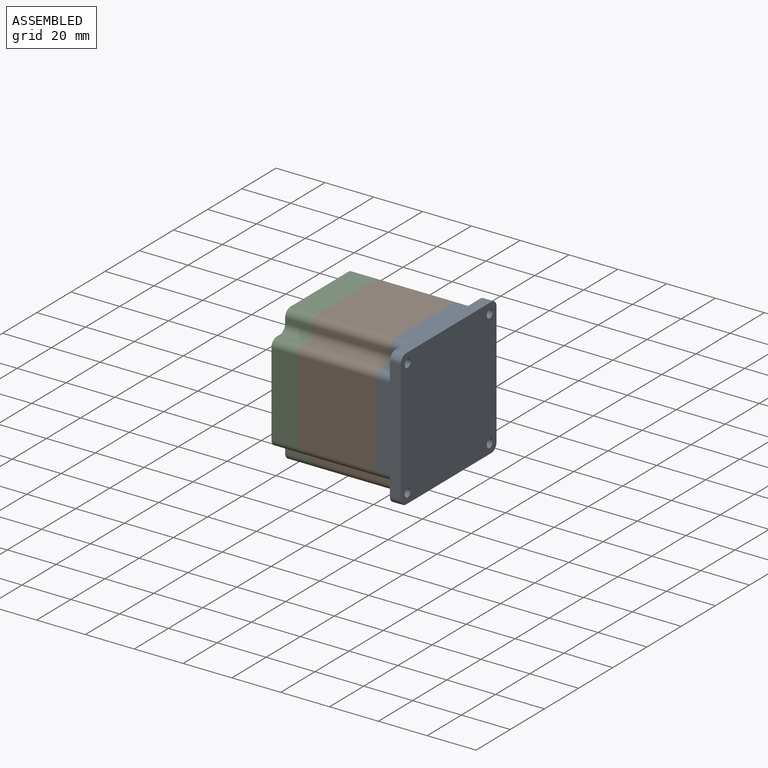
[diagram: assembled view]
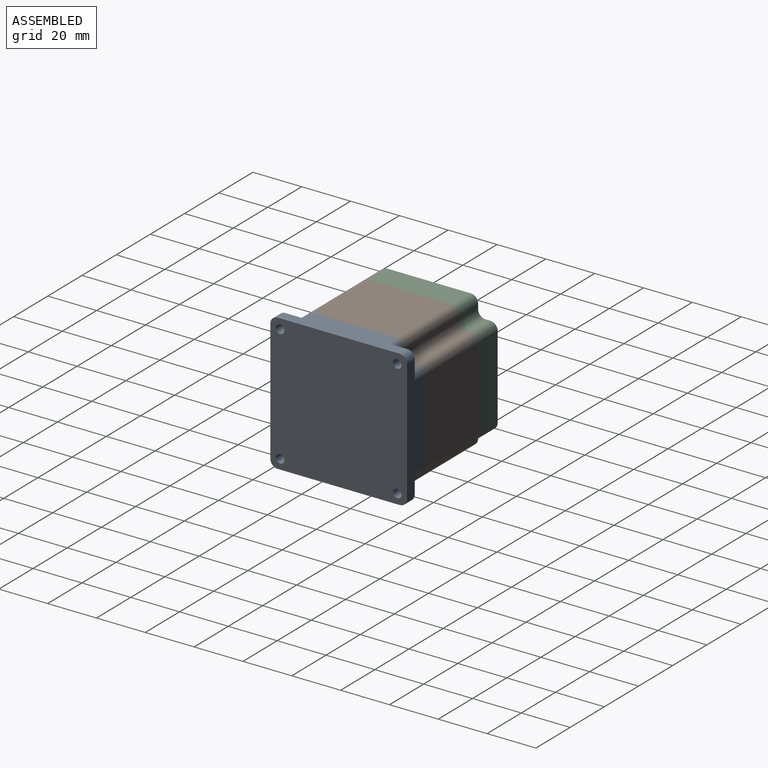
[diagram: assembled view, second angle]
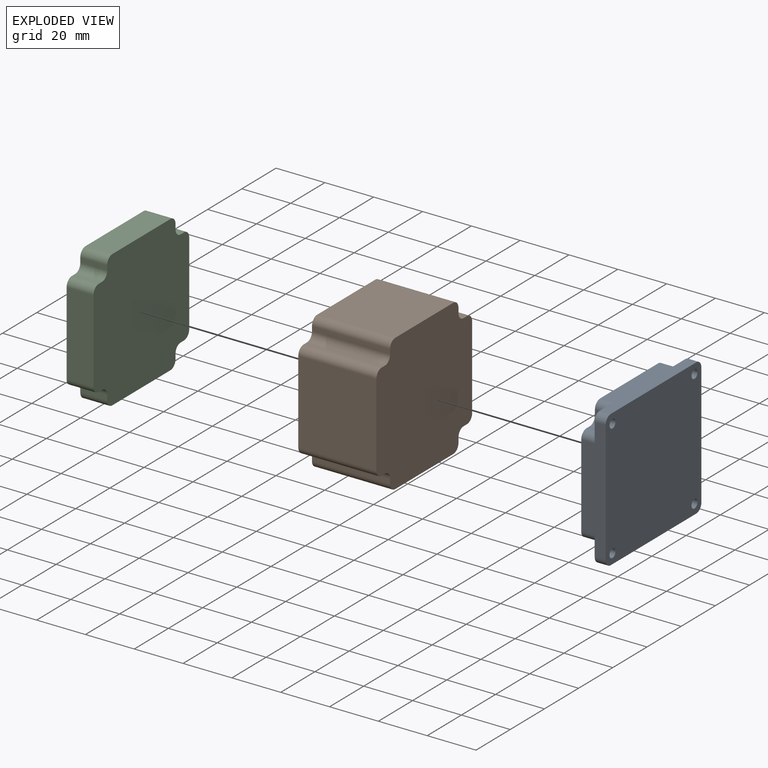
[diagram: exploded view]
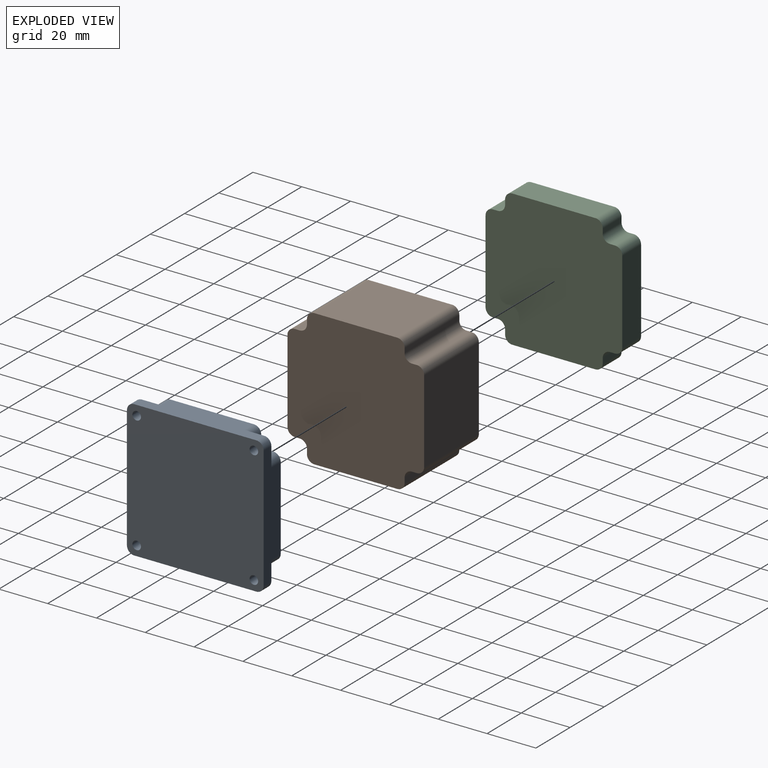
[diagram: exploded view, second angle]
ASSEMBLY  parts=3 mates=2
PART A: 38 faces, bbox 10x56x56 mm
  f0: plane 5.5x2mm, normal (0,0,1), area 11mm2, adj f12,f17,f23,f25
  f1: plane 50x10mm, normal (0,-1,0), area 412mm2, adj f12,f13,f16,f17,f22,f23,f26,f27
  f2: plane 5.5x2mm, normal (0,0,-1), area 11mm2, adj f12,f13,f27,f28
  f3: plane 5.5x2mm, normal (0,-1,0), area 11mm2, adj f12,f13,f28,f29
  f4: plane 50x10mm, normal (0,0,-1), area 412mm2, adj f12,f13,f14,f16,f26,f29,f30,f31
  f5: plane 5.5x2mm, normal (0,1,0), area 11mm2, adj f12,f14,f31,f32
  f6: plane 5.5x2mm, normal (0,0,-1), area 11mm2, adj f12,f14,f32,f33
  f7: plane 50x10mm, normal (0,1,0), area 412mm2, adj f12,f14,f15,f16,f30,f33,f34,f35
  f8: plane 5.5x2mm, normal (0,0,1), area 11mm2, adj f12,f15,f35,f36
  f9: plane 5.5x2mm, normal (0,1,0), area 11mm2, adj f12,f15,f36,f37
  f10: plane 50x10mm, normal (0,0,1), area 412mm2, adj f12,f15,f16,f17,f22,f24,f34,f37
  f11: plane 5.5x2mm, normal (0,-1,0), area 11mm2, adj f12,f17,f24,f25
  f12: plane 56x56mm, normal (-1,0,0), area 2872.3mm2, adj f0,f1,f2,f3,f4,f5,f6,f7
  f13: plane 11x11mm, normal (-1,0,0), area 54.4mm2, adj f1,f2,f3,f4,f21,f26,f27,f28
  f14: plane 11x11mm, normal (-1,0,0), area 54.4mm2, adj f4,f5,f6,f7,f20,f30,f31,f32
  f15: plane 11x11mm, normal (-1,0,0), area 54.4mm2, adj f7,f8,f9,f10,f19,f34,f35,f36
  f16: plane 56x56mm, normal (1,0,0), area 3089.8mm2, adj f1,f4,f7,f10,f18,f19,f20,f21
  f17: plane 11x11mm, normal (-1,0,0), area 54.4mm2, adj f0,f1,f10,f11,f18,f22,f23,f24
  f18: cylinder r=1.75mm len=4.5mm, axis (1,0,0), area 49.5mm2, adj f16,f17
  f19: cylinder r=1.75mm len=4.5mm, axis (1,0,0), area 49.5mm2, adj f15,f16
  f20: cylinder r=1.75mm len=4.5mm, axis (1,0,0), area 49.5mm2, adj f14,f16
  f21: cylinder r=1.75mm len=4.5mm, axis (1,0,0), area 49.5mm2, adj f13,f16
  f22: cylinder r=3mm len=4.5mm, axis (1,0,0), area 21.2mm2, adj f1,f10,f16,f17
  f23: cylinder r=3mm len=5.5mm, axis (1,0,0), area 25.9mm2, adj f0,f1,f12,f17
  f24: cylinder r=3mm len=5.5mm, axis (-1,0,0), area 25.9mm2, adj f10,f11,f12,f17
  f25: cylinder r=3mm len=5.5mm, axis (1,0,0), area 25.9mm2, adj f0,f11,f12,f17
  f26: cylinder r=3mm len=4.5mm, axis (-1,0,0), area 21.2mm2, adj f1,f4,f13,f16
  f27: cylinder r=3mm len=5.5mm, axis (1,0,0), area 25.9mm2, adj f1,f2,f12,f13
  f28: cylinder r=3mm len=5.5mm, axis (1,0,0), area 25.9mm2, adj f2,f3,f12,f13
  f29: cylinder r=3mm len=5.5mm, axis (1,0,0), area 25.9mm2, adj f3,f4,f12,f13
  f30: cylinder r=3mm len=4.5mm, axis (1,0,0), area 21.2mm2, adj f4,f7,f14,f16
  f31: cylinder r=3mm len=5.5mm, axis (1,0,0), area 25.9mm2, adj f4,f5,f12,f14
  f32: cylinder r=3mm len=5.5mm, axis (1,0,0), area 25.9mm2, adj f5,f6,f12,f14
  f33: cylinder r=3mm len=5.5mm, axis (-1,0,0), area 25.9mm2, adj f6,f7,f12,f14
  f34: cylinder r=3mm len=4.5mm, axis (-1,0,0), area 21.2mm2, adj f7,f10,f15,f16
  f35: cylinder r=3mm len=5.5mm, axis (-1,0,0), area 25.9mm2, adj f7,f8,f12,f15
  f36: cylinder r=3mm len=5.5mm, axis (1,0,0), area 25.9mm2, adj f8,f9,f12,f15
  f37: cylinder r=3mm len=5.5mm, axis (-1,0,0), area 25.9mm2, adj f9,f10,f12,f15
PART B: 26 faces, bbox 32x56x56 mm
  f0: plane 32x2mm, normal (0,0,1), area 64mm2, adj f12,f13,f14,f16
  f1: plane 34x32mm, normal (0,-1,0), area 1088mm2, adj f12,f13,f14,f17
  f2: plane 32x2mm, normal (0,0,-1), area 64mm2, adj f12,f13,f17,f18
  f3: plane 32x2mm, normal (0,-1,0), area 64mm2, adj f12,f13,f18,f19
  f4: plane 34x32mm, normal (0,0,-1), area 1088mm2, adj f12,f13,f19,f20
  f5: plane 32x2mm, normal (0,1,0), area 64mm2, adj f12,f13,f20,f21
  f6: plane 32x2mm, normal (0,0,-1), area 64mm2, adj f12,f13,f21,f22
  f7: plane 34x32mm, normal (0,1,0), area 1088mm2, adj f12,f13,f22,f23
  f8: plane 32x2mm, normal (0,0,1), area 64mm2, adj f12,f13,f23,f24
  f9: plane 32x2mm, normal (0,1,0), area 64mm2, adj f12,f13,f24,f25
  f10: plane 34x32mm, normal (0,0,1), area 1088mm2, adj f12,f13,f15,f25
  f11: plane 32x2mm, normal (0,-1,0), area 64mm2, adj f12,f13,f15,f16
  f12: plane 56x56mm, normal (1,0,0), area 2872.3mm2, adj f0,f1,f2,f3,f4,f5,f6,f7
  f13: plane 56x56mm, normal (-1,0,0), area 2872.3mm2, adj f0,f1,f2,f3,f4,f5,f6,f7
  f14: cylinder r=3mm len=32mm, axis (1,0,0), area 150.8mm2, adj f0,f1,f12,f13
  f15: cylinder r=3mm len=32mm, axis (-1,0,0), area 150.8mm2, adj f10,f11,f12,f13
  f16: cylinder r=3mm len=32mm, axis (1,0,0), area 150.8mm2, adj f0,f11,f12,f13
  f17: cylinder r=3mm len=32mm, axis (1,0,0), area 150.8mm2, adj f1,f2,f12,f13
  f18: cylinder r=3mm len=32mm, axis (1,0,0), area 150.8mm2, adj f2,f3,f12,f13
  f19: cylinder r=3mm len=32mm, axis (1,0,0), area 150.8mm2, adj f3,f4,f12,f13
  f20: cylinder r=3mm len=32mm, axis (1,0,0), area 150.8mm2, adj f4,f5,f12,f13
  f21: cylinder r=3mm len=32mm, axis (1,0,0), area 150.8mm2, adj f5,f6,f12,f13
  f22: cylinder r=3mm len=32mm, axis (-1,0,0), area 150.8mm2, adj f6,f7,f12,f13
  f23: cylinder r=3mm len=32mm, axis (-1,0,0), area 150.8mm2, adj f7,f8,f12,f13
  f24: cylinder r=3mm len=32mm, axis (1,0,0), area 150.8mm2, adj f8,f9,f12,f13
  f25: cylinder r=3mm len=32mm, axis (-1,0,0), area 150.8mm2, adj f9,f10,f12,f13
PART C: 26 faces, bbox 11x56x56 mm
  f0: plane 11x2mm, normal (0,0,1), area 22mm2, adj f12,f13,f14,f16
  f1: plane 34x11mm, normal (0,-1,0), area 374mm2, adj f12,f13,f14,f17
  f2: plane 11x2mm, normal (0,0,-1), area 22mm2, adj f12,f13,f17,f18
  f3: plane 11x2mm, normal (0,-1,0), area 22mm2, adj f12,f13,f18,f19
  f4: plane 34x11mm, normal (0,0,-1), area 374mm2, adj f12,f13,f19,f20
  f5: plane 11x2mm, normal (0,1,0), area 22mm2, adj f12,f13,f20,f21
  f6: plane 11x2mm, normal (0,0,-1), area 22mm2, adj f12,f13,f21,f22
  f7: plane 34x11mm, normal (0,1,0), area 374mm2, adj f12,f13,f22,f23
  f8: plane 11x2mm, normal (0,0,1), area 22mm2, adj f12,f13,f23,f24
  f9: plane 11x2mm, normal (0,1,0), area 22mm2, adj f12,f13,f24,f25
  f10: plane 34x11mm, normal (0,0,1), area 374mm2, adj f12,f13,f15,f25
  f11: plane 11x2mm, normal (0,-1,0), area 22mm2, adj f12,f13,f15,f16
  f12: plane 56x56mm, normal (1,0,0), area 2872.3mm2, adj f0,f1,f2,f3,f4,f5,f6,f7
  f13: plane 56x56mm, normal (-1,0,0), area 2872.3mm2, adj f0,f1,f2,f3,f4,f5,f6,f7
  f14: cylinder r=3mm len=11mm, axis (1,0,0), area 51.8mm2, adj f0,f1,f12,f13
  f15: cylinder r=3mm len=11mm, axis (-1,0,0), area 51.8mm2, adj f10,f11,f12,f13
  f16: cylinder r=3mm len=11mm, axis (1,0,0), area 51.8mm2, adj f0,f11,f12,f13
  f17: cylinder r=3mm len=11mm, axis (1,0,0), area 51.8mm2, adj f1,f2,f12,f13
  f18: cylinder r=3mm len=11mm, axis (1,0,0), area 51.8mm2, adj f2,f3,f12,f13
  f19: cylinder r=3mm len=11mm, axis (1,0,0), area 51.8mm2, adj f3,f4,f12,f13
  f20: cylinder r=3mm len=11mm, axis (1,0,0), area 51.8mm2, adj f4,f5,f12,f13
  f21: cylinder r=3mm len=11mm, axis (1,0,0), area 51.8mm2, adj f5,f6,f12,f13
  f22: cylinder r=3mm len=11mm, axis (-1,0,0), area 51.8mm2, adj f6,f7,f12,f13
  f23: cylinder r=3mm len=11mm, axis (-1,0,0), area 51.8mm2, adj f7,f8,f12,f13
  f24: cylinder r=3mm len=11mm, axis (1,0,0), area 51.8mm2, adj f8,f9,f12,f13
  f25: cylinder r=3mm len=11mm, axis (-1,0,0), area 51.8mm2, adj f9,f10,f12,f13
PLACE A t=(-22.31,8.68,9.39)mm
PLACE B t=(-22.31,8.68,9.39)mm
PLACE C t=(-22.31,8.68,9.39)mm
MATE fastened B.f12 <-> A.f12  axis (1,0,0) through (20.69,8.68,9.39)mm
MATE fastened C.f12 <-> B.f13  axis (1,0,0) through (-11.31,8.68,9.39)mm
